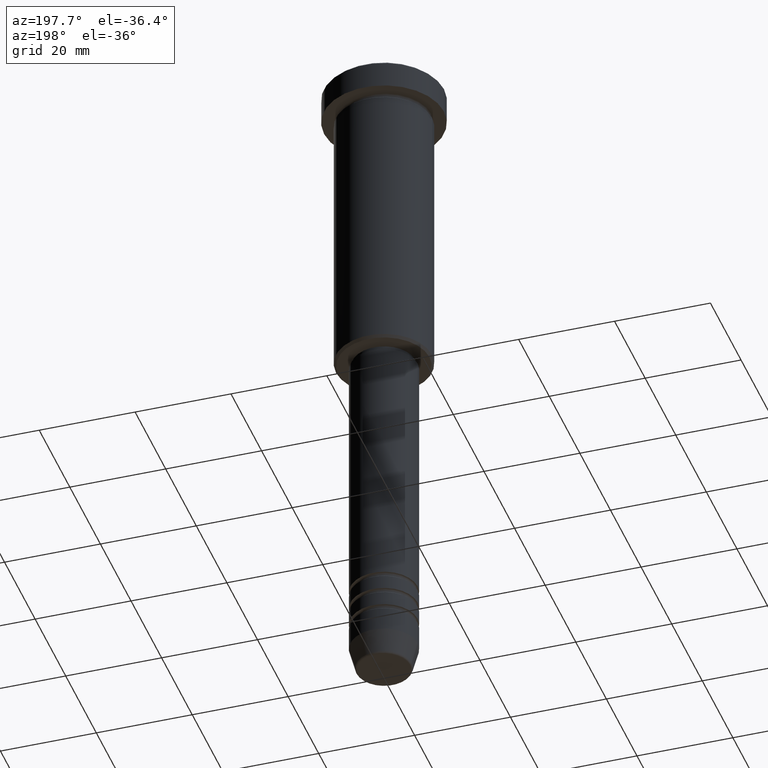
[diagram: clean part render]
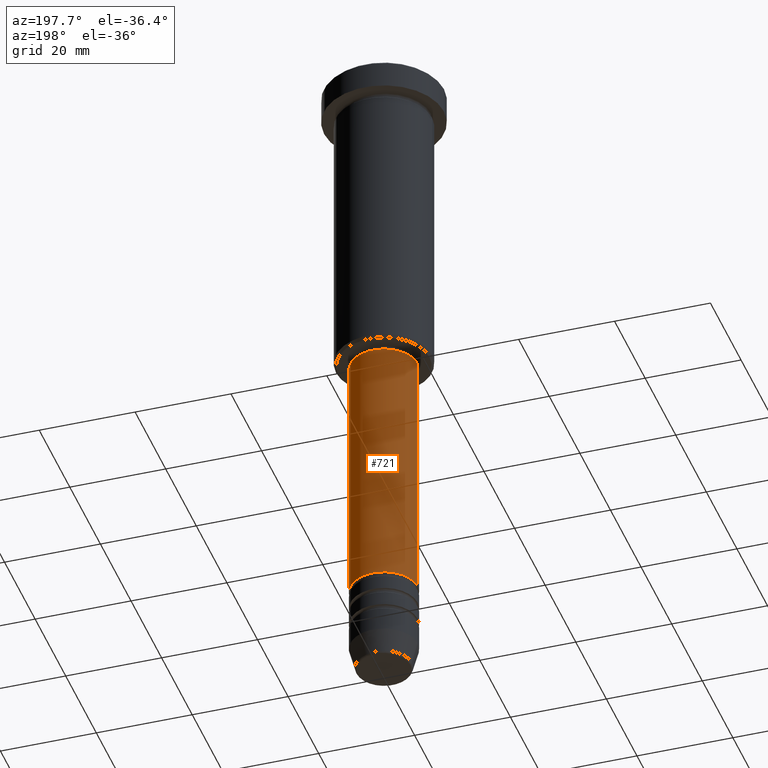
[diagram: same view with one face highlighted and labeled with its STEP entity id]
A machine part, auxiliary view. The second image highlights one B-rep face of the part: STEP entity #721.
In plain terms, the highlighted cylindrical surface (edge-blend (fillet) strip) has radius 7 mm, axis along (-0, -0, 1).
Its self-contained STEP definition (entity closure, byte-faithful):
#48 = ORIENTED_EDGE ( 'NONE', *, *, #375, .F. ) ;
#111 = AXIS2_PLACEMENT_3D ( 'NONE', #928, #464, #1010 ) ;
#125 = ORIENTED_EDGE ( 'NONE', *, *, #194, .F. ) ;
#136 = DIRECTION ( 'NONE',  ( -0.000000000000000000, -0.000000000000000000, 1.000000000000000000 ) ) ;
#194 = EDGE_CURVE ( 'NONE', #468, #374, #225, .T. ) ;
#199 = EDGE_CURVE ( 'NONE', #717, #596, #365, .T. ) ;
#225 = CIRCLE ( 'NONE', #910, 7.000000000000000888 ) ;
#228 = CARTESIAN_POINT ( 'NONE',  ( -7.000000000000000888, 8.572527594031474176E-16, 0.000000000000000000 ) ) ;
#257 = ORIENTED_EDGE ( 'NONE', *, *, #199, .T. ) ;
#278 = CYLINDRICAL_SURFACE ( 'NONE', #111, 7.000000000000000888 ) ;
#333 = LINE ( 'NONE', #228, #1142 ) ;
#365 = CIRCLE ( 'NONE', #381, 7.000000000000000888 ) ;
#374 = VERTEX_POINT ( 'NONE', #1135 ) ;
#375 = EDGE_CURVE ( 'NONE', #717, #468, #1043, .T. ) ;
#381 = AXIS2_PLACEMENT_3D ( 'NONE', #627, #824, #642 ) ;
#404 = CARTESIAN_POINT ( 'NONE',  ( 7.000000000000000888, 0.000000000000000000, 0.000000000000000000 ) ) ;
#427 = ORIENTED_EDGE ( 'NONE', *, *, #935, .T. ) ;
#449 = DIRECTION ( 'NONE',  ( 1.000000000000000000, 0.000000000000000000, 0.000000000000000000 ) ) ;
#464 = DIRECTION ( 'NONE',  ( -0.000000000000000000, -0.000000000000000000, 1.000000000000000000 ) ) ;
#468 = VERTEX_POINT ( 'NONE', #1155 ) ;
#596 = VERTEX_POINT ( 'NONE', #833 ) ;
#627 = CARTESIAN_POINT ( 'NONE',  ( 0.000000000000000000, 0.000000000000000000, -121.9999999999999005 ) ) ;
#642 = DIRECTION ( 'NONE',  ( 1.000000000000000000, 0.000000000000000000, 0.000000000000000000 ) ) ;
#651 = VECTOR ( 'NONE', #136, 1000.000000000000000 ) ;
#717 = VERTEX_POINT ( 'NONE', #741 ) ;
#721 = ADVANCED_FACE ( 'NONE', ( #1102 ), #278, .T. ) ;
#741 = CARTESIAN_POINT ( 'NONE',  ( 7.000000000000000888, 0.000000000000000000, -121.9999999999999005 ) ) ;
#817 = DIRECTION ( 'NONE',  ( -0.000000000000000000, -0.000000000000000000, 1.000000000000000000 ) ) ;
#824 = DIRECTION ( 'NONE',  ( -0.000000000000000000, -0.000000000000000000, 1.000000000000000000 ) ) ;
#833 = CARTESIAN_POINT ( 'NONE',  ( -7.000000000000000888, 8.572527594031474176E-16, -121.9999999999999005 ) ) ;
#910 = AXIS2_PLACEMENT_3D ( 'NONE', #916, #817, #449 ) ;
#911 = EDGE_LOOP ( 'NONE', ( #257, #427, #125, #48 ) ) ;
#916 = CARTESIAN_POINT ( 'NONE',  ( 0.000000000000000000, 0.000000000000000000, -67.00000000000000000 ) ) ;
#928 = CARTESIAN_POINT ( 'NONE',  ( 0.000000000000000000, 0.000000000000000000, 0.000000000000000000 ) ) ;
#935 = EDGE_CURVE ( 'NONE', #596, #374, #333, .T. ) ;
#1010 = DIRECTION ( 'NONE',  ( 1.000000000000000000, 0.000000000000000000, 0.000000000000000000 ) ) ;
#1043 = LINE ( 'NONE', #404, #651 ) ;
#1068 = DIRECTION ( 'NONE',  ( -0.000000000000000000, -0.000000000000000000, 1.000000000000000000 ) ) ;
#1102 = FACE_OUTER_BOUND ( 'NONE', #911, .T. ) ;
#1135 = CARTESIAN_POINT ( 'NONE',  ( -7.000000000000000888, 8.572527594031474176E-16, -67.00000000000000000 ) ) ;
#1142 = VECTOR ( 'NONE', #1068, 1000.000000000000000 ) ;
#1155 = CARTESIAN_POINT ( 'NONE',  ( 7.000000000000000888, 0.000000000000000000, -67.00000000000000000 ) ) ;